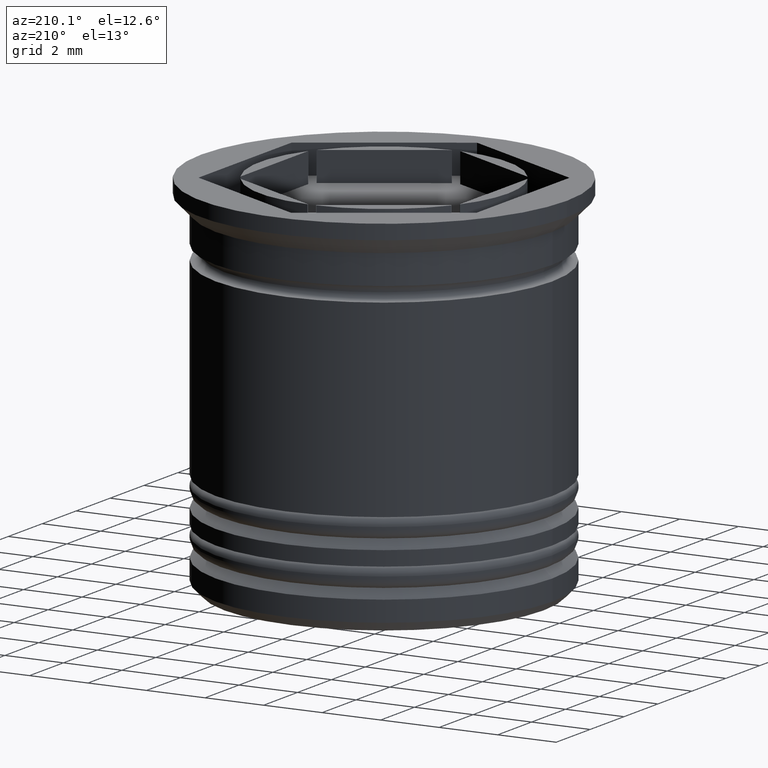
[diagram: clean part render]
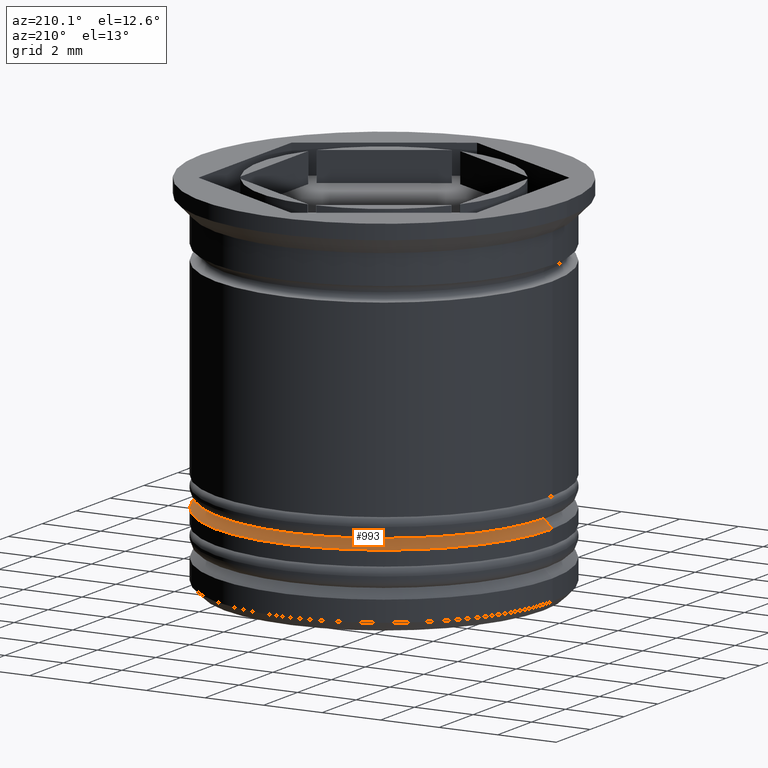
[diagram: same view with one face highlighted and labeled with its STEP entity id]
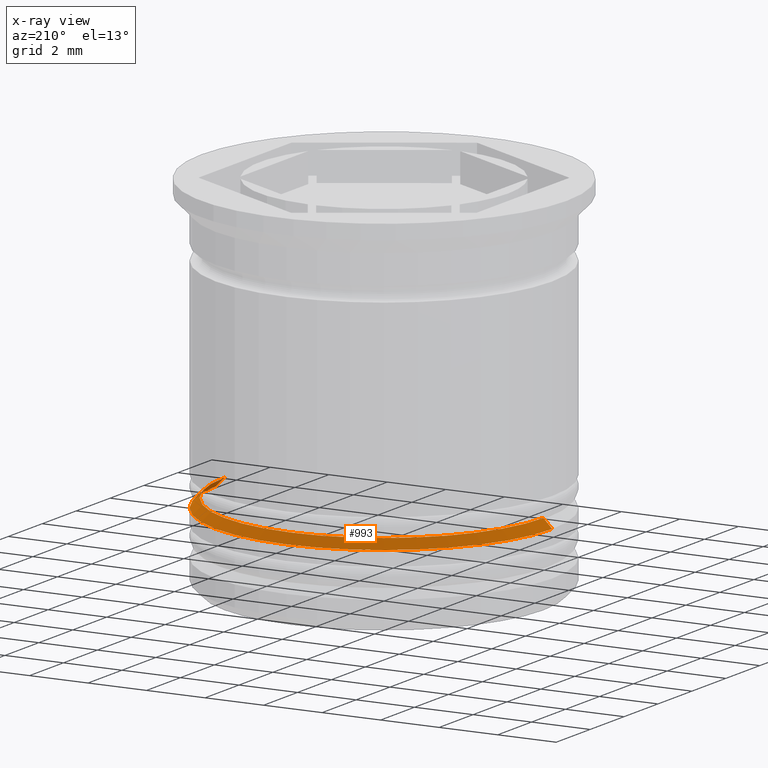
[diagram: x-ray of the same camera — body ghosted, the highlighted face saturated]
A machine part, auxiliary view. The second image highlights one B-rep face of the part: STEP entity #993.
The next image is the same camera in x-ray: the body ghosted, the highlighted face saturated — about 2% of this face is hidden behind the body in this view.
In plain terms, the highlighted conical surface has half-angle 45 deg.
Its self-contained STEP definition (entity closure, byte-faithful):
#20 = DIRECTION ( 'NONE',  ( -0.000000000000000000, -0.000000000000000000, 1.000000000000000000 ) ) ;
#40 = CARTESIAN_POINT ( 'NONE',  ( -5.750000000000001776, 7.041719095097282852E-16, -10.00000000000000533 ) ) ;
#47 = DIRECTION ( 'NONE',  ( 0.7071067811865512365, 8.659560562354978464E-17, -0.7071067811865439090 ) ) ;
#65 = ORIENTED_EDGE ( 'NONE', *, *, #1524, .F. ) ;
#94 = EDGE_LOOP ( 'NONE', ( #65, #649, #1075, #398 ) ) ;
#120 = CIRCLE ( 'NONE', #1800, 5.750000000000001776 ) ;
#295 = CARTESIAN_POINT ( 'NONE',  ( 0.000000000000000000, 0.000000000000000000, -10.00000000000000533 ) ) ;
#342 = CARTESIAN_POINT ( 'NONE',  ( 5.249999999999992895, 6.429395695523595278E-16, -9.500000000000001776 ) ) ;
#345 = VECTOR ( 'NONE', #841, 1000.000000000000000 ) ;
#372 = VERTEX_POINT ( 'NONE', #427 ) ;
#397 = CARTESIAN_POINT ( 'NONE',  ( -5.249999999999992895, 0.000000000000000000, -9.500000000000001776 ) ) ;
#398 = ORIENTED_EDGE ( 'NONE', *, *, #1627, .F. ) ;
#427 = CARTESIAN_POINT ( 'NONE',  ( 5.750000000000001776, 0.000000000000000000, -10.00000000000000533 ) ) ;
#502 = LINE ( 'NONE', #342, #1207 ) ;
#514 = CARTESIAN_POINT ( 'NONE',  ( 0.000000000000000000, 0.000000000000000000, -9.700000000000006395 ) ) ;
#549 = LINE ( 'NONE', #397, #345 ) ;
#622 = FACE_OUTER_BOUND ( 'NONE', #94, .T. ) ;
#643 = CARTESIAN_POINT ( 'NONE',  ( 5.450000000000000178, 0.000000000000000000, -9.700000000000006395 ) ) ;
#649 = ORIENTED_EDGE ( 'NONE', *, *, #740, .T. ) ;
#740 = EDGE_CURVE ( 'NONE', #1359, #372, #502, .T. ) ;
#752 = VERTEX_POINT ( 'NONE', #1566 ) ;
#760 = DIRECTION ( 'NONE',  ( 0.000000000000000000, 0.000000000000000000, -1.000000000000000000 ) ) ;
#817 = VERTEX_POINT ( 'NONE', #40 ) ;
#841 = DIRECTION ( 'NONE',  ( -0.7071067811865512365, 0.000000000000000000, -0.7071067811865439090 ) ) ;
#885 = CONICAL_SURFACE ( 'NONE', #1209, 5.249999999999992895, 0.7853981633974533860 ) ;
#993 = ADVANCED_FACE ( 'NONE', ( #622 ), #885, .T. ) ;
#1037 = AXIS2_PLACEMENT_3D ( 'NONE', #514, #20, #1580 ) ;
#1075 = ORIENTED_EDGE ( 'NONE', *, *, #1257, .F. ) ;
#1101 = CARTESIAN_POINT ( 'NONE',  ( 0.000000000000000000, 0.000000000000000000, -9.500000000000001776 ) ) ;
#1207 = VECTOR ( 'NONE', #47, 1000.000000000000000 ) ;
#1209 = AXIS2_PLACEMENT_3D ( 'NONE', #1101, #1264, #1408 ) ;
#1243 = CIRCLE ( 'NONE', #1037, 5.450000000000000178 ) ;
#1257 = EDGE_CURVE ( 'NONE', #817, #372, #120, .T. ) ;
#1264 = DIRECTION ( 'NONE',  ( 0.000000000000000000, 0.000000000000000000, -1.000000000000000000 ) ) ;
#1359 = VERTEX_POINT ( 'NONE', #643 ) ;
#1378 = DIRECTION ( 'NONE',  ( -1.000000000000000000, 0.000000000000000000, 0.000000000000000000 ) ) ;
#1408 = DIRECTION ( 'NONE',  ( -1.000000000000000000, 0.000000000000000000, 0.000000000000000000 ) ) ;
#1524 = EDGE_CURVE ( 'NONE', #1359, #752, #1243, .T. ) ;
#1566 = CARTESIAN_POINT ( 'NONE',  ( -5.450000000000000178, 6.674325055353075238E-16, -9.700000000000006395 ) ) ;
#1580 = DIRECTION ( 'NONE',  ( -1.000000000000000000, 0.000000000000000000, 0.000000000000000000 ) ) ;
#1627 = EDGE_CURVE ( 'NONE', #752, #817, #549, .T. ) ;
#1800 = AXIS2_PLACEMENT_3D ( 'NONE', #295, #760, #1378 ) ;